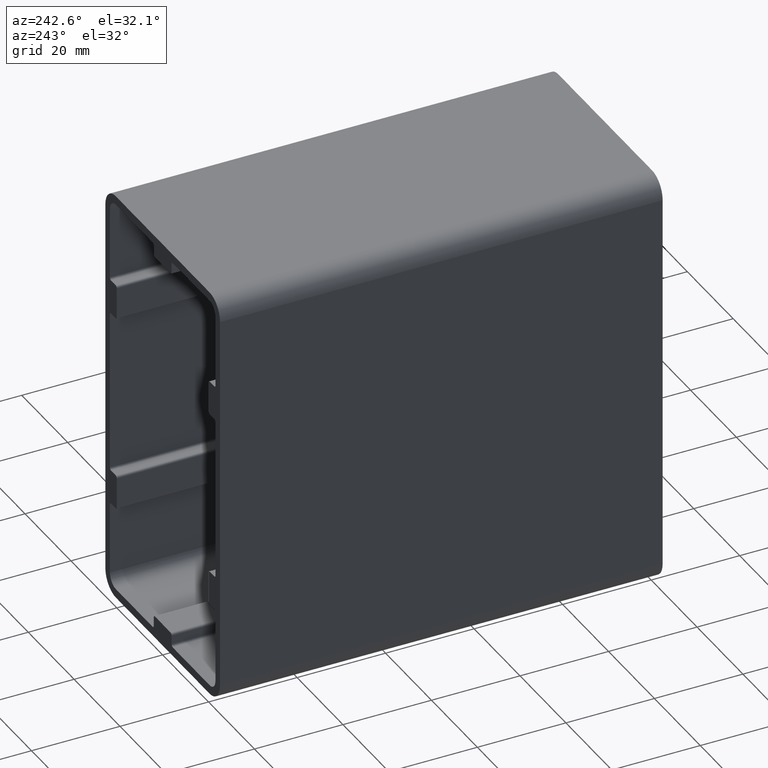
[diagram: clean part render]
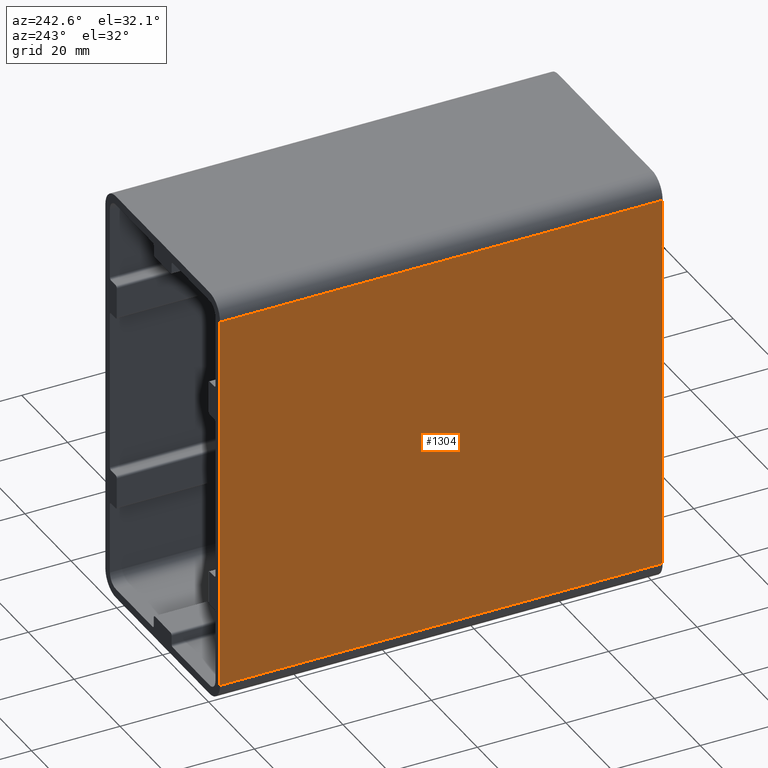
[diagram: same view with one face highlighted and labeled with its STEP entity id]
A machine part, auxiliary view. The second image highlights one B-rep face of the part: STEP entity #1304.
In plain terms, the highlighted planar face has unit normal (-1, 0, 0).
Its self-contained STEP definition (entity closure, byte-faithful):
#48=PLANE('',#1454);
#114=FACE_OUTER_BOUND('',#181,.T.);
#181=EDGE_LOOP('',(#1137,#1138,#1139,#1140));
#186=LINE('',#1856,#314);
#190=LINE('',#1870,#318);
#226=LINE('',#2004,#354);
#311=LINE('',#2230,#439);
#314=VECTOR('',#1466,10.);
#318=VECTOR('',#1478,10.);
#354=VECTOR('',#1586,10.);
#439=VECTOR('',#1841,10.);
#505=VERTEX_POINT('',#1849);
#508=VERTEX_POINT('',#1854);
#514=VERTEX_POINT('',#1868);
#576=VERTEX_POINT('',#2002);
#636=EDGE_CURVE('',#508,#505,#186,.T.);
#643=EDGE_CURVE('',#508,#514,#190,.T.);
#710=EDGE_CURVE('',#576,#514,#226,.T.);
#823=EDGE_CURVE('',#505,#576,#311,.T.);
#1137=ORIENTED_EDGE('',*,*,#636,.F.);
#1138=ORIENTED_EDGE('',*,*,#643,.T.);
#1139=ORIENTED_EDGE('',*,*,#710,.F.);
#1140=ORIENTED_EDGE('',*,*,#823,.F.);
#1304=ADVANCED_FACE('',(#114),#48,.T.);
#1454=AXIS2_PLACEMENT_3D('',#2229,#1839,#1840);
#1466=DIRECTION('',(0.,1.,0.));
#1478=DIRECTION('',(0.,0.,1.));
#1586=DIRECTION('',(0.,-1.,0.));
#1839=DIRECTION('center_axis',(-1.,0.,0.));
#1840=DIRECTION('ref_axis',(0.,0.,1.));
#1841=DIRECTION('',(0.,0.,1.));
#1849=CARTESIAN_POINT('',(-25.,100.,-43.));
#1854=CARTESIAN_POINT('',(-25.,0.,-43.));
#1856=CARTESIAN_POINT('',(-25.,0.,-43.));
#1868=CARTESIAN_POINT('',(-25.,0.,43.));
#1870=CARTESIAN_POINT('',(-25.,0.,-47.5));
#2002=CARTESIAN_POINT('',(-25.,100.,43.));
#2004=CARTESIAN_POINT('',(-25.,0.,43.));
#2229=CARTESIAN_POINT('Origin',(-25.,0.,-47.5));
#2230=CARTESIAN_POINT('',(-25.,100.,-47.5));